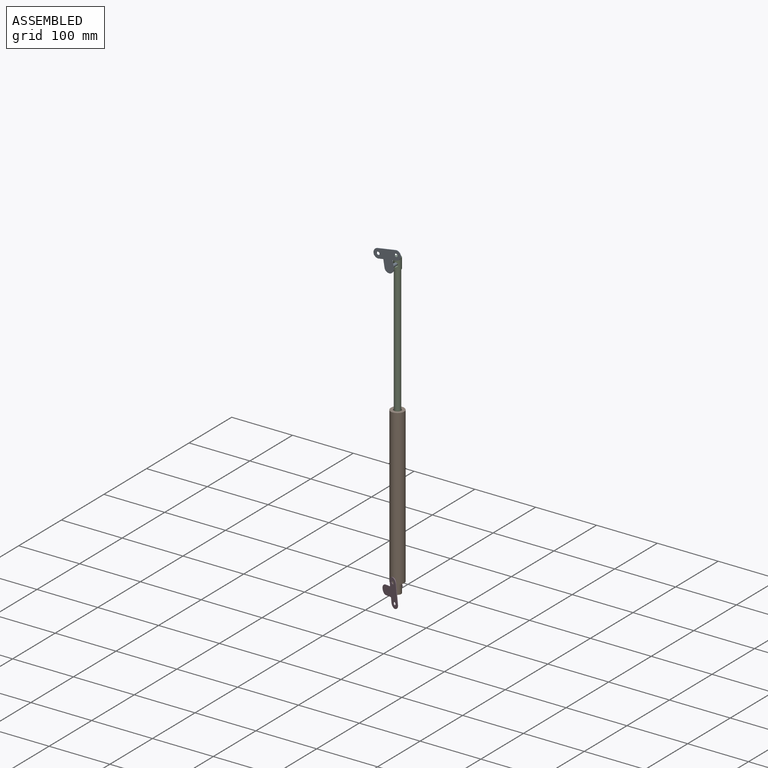
[diagram: assembled view]
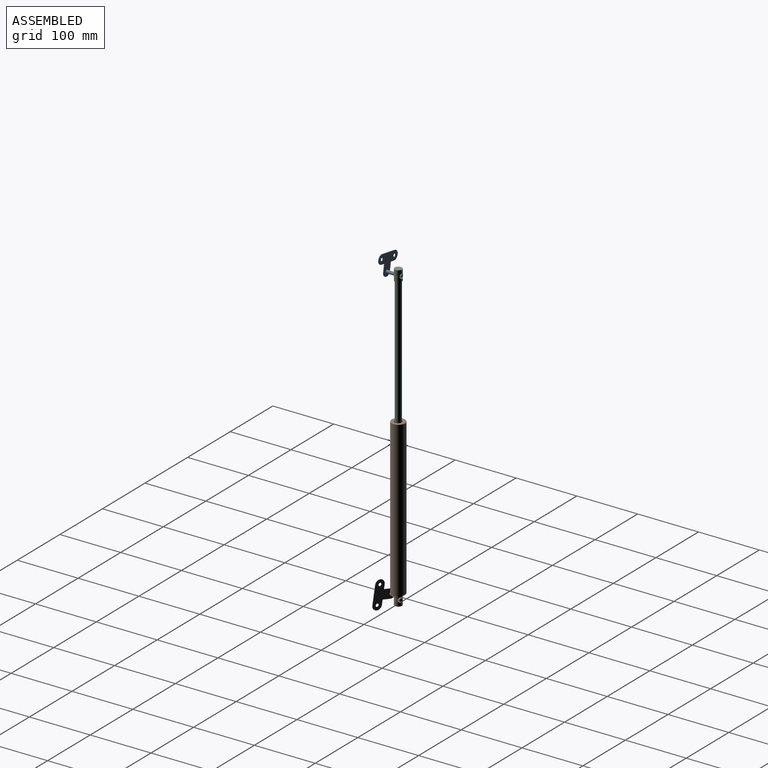
[diagram: assembled view, second angle]
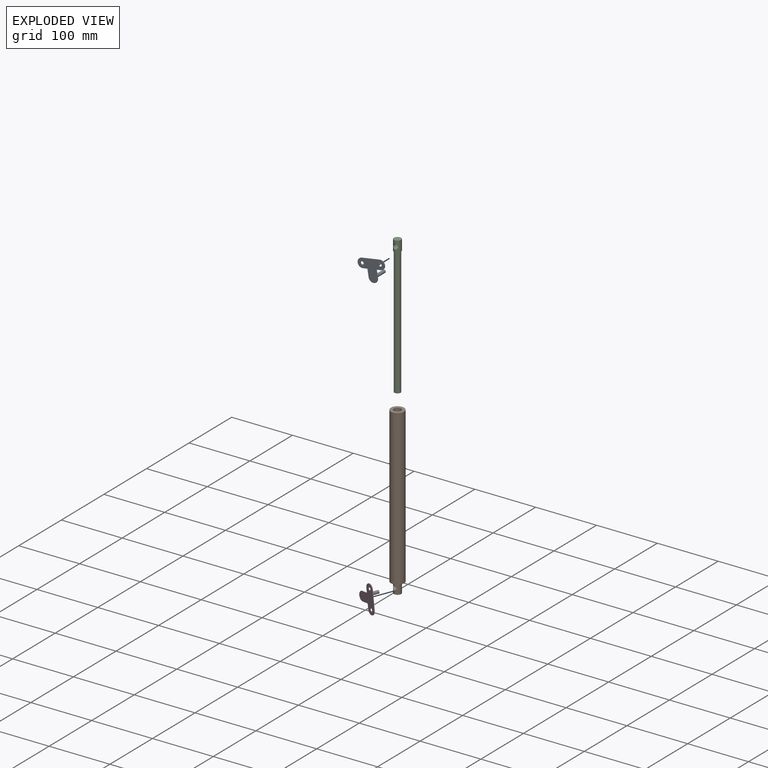
[diagram: exploded view]
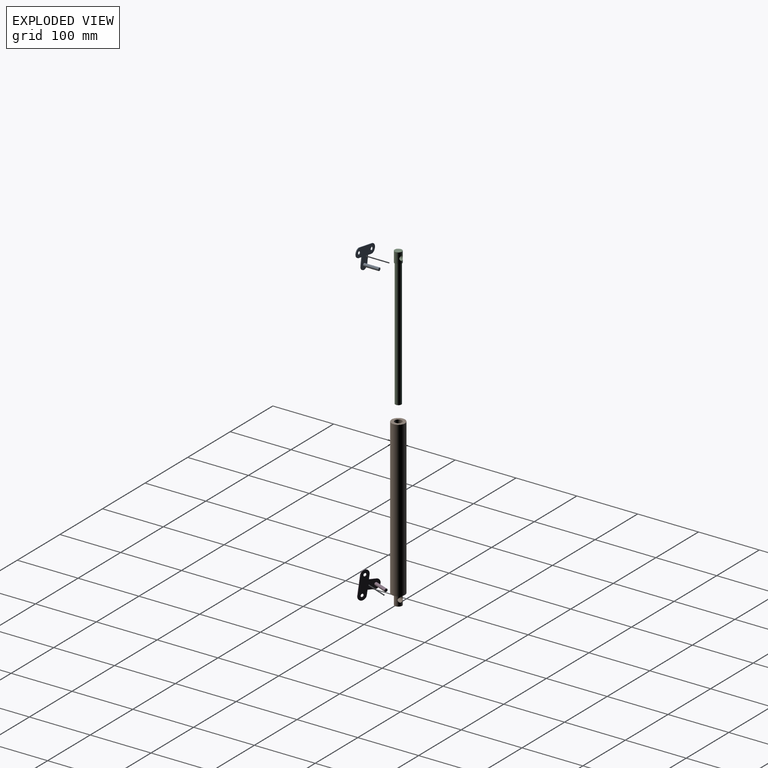
[diagram: exploded view, second angle]
ASSEMBLY  parts=4 mates=3
PART A: 14 faces, bbox 45x35x26 mm
  f0: plane 30x1mm, normal (0,-1,0), area 30mm2, adj f1,f7,f10,f11
  f1: cylinder r=7.5mm len=15mm, axis (0,0,1), area 23.6mm2, adj f0,f2,f10,f11
  f2: plane 7.5x1mm, normal (0,1,0), area 7.5mm2, adj f1,f3,f10,f11
  f3: plane 12.5x1mm, normal (1,0,0), area 12.5mm2, adj f2,f4,f10,f11
  f4: cylinder r=7.5mm len=15mm, axis (0,0,1), area 23.6mm2, adj f3,f5,f10,f11
  f5: plane 12.5x1mm, normal (-1,0,0), area 12.5mm2, adj f4,f6,f10,f11
  f6: plane 7.5x1mm, normal (0,1,0), area 7.5mm2, adj f5,f7,f10,f11
  f7: cylinder r=7.5mm len=15mm, axis (0,0,1), area 23.6mm2, adj f0,f6,f10,f11
  f8: cylinder r=2.5mm len=5mm, axis (0,0,1), area 15.7mm2, adj f10,f11
  f9: cylinder r=2.5mm len=5mm, axis (0,0,1), area 15.7mm2, adj f10,f11
  f10: plane 45x35mm, normal (0,0,1), area 843.7mm2, adj f0,f1,f2,f3,f4,f5,f6,f7
  f11: plane 45x35mm, normal (0,0,-1), area 863.3mm2, adj f0,f1,f2,f3,f4,f5,f6,f7
  f12: cylinder r=2.5mm len=25mm, axis (0,0,-1), area 392.7mm2, adj f10,f13
  f13: plane 5x5mm, normal (0,0,1), area 19.6mm2, adj f12
PART B: 8 faces, bbox 22x22x272.5 mm
  f0: cylinder r=11mm len=255mm, axis (0,0,-1), area 17624.3mm2, adj f1,f5
  f1: plane 22x22mm, normal (0,0,-1), area 267mm2, adj f0,f2
  f2: cylinder r=6mm len=17.5mm, axis (0,0,1), area 552.3mm2, adj f1,f3,f7
  f3: plane 12x12mm, normal (0,0,-1), area 113.1mm2, adj f2
  f4: cylinder r=6mm len=210mm, axis (0,0,-1), area 7916.8mm2, adj f5,f6
  f5: plane 22x22mm, normal (0,0,1), area 267mm2, adj f0,f4
  f6: plane 12x12mm, normal (0,0,1), area 113.1mm2, adj f4
  f7: cylinder r=4mm len=12mm, axis (0,-1,0), area 264.6mm2, adj f2
PART C: 6 faces, bbox 12x12x227.5 mm
  f0: cylinder r=5mm len=210mm, axis (0,0,-1), area 6597.3mm2, adj f1,f4
  f1: plane 10x10mm, normal (0,0,-1), area 78.5mm2, adj f0
  f2: cylinder r=6mm len=17.5mm, axis (0,0,-1), area 552.3mm2, adj f3,f4,f5
  f3: plane 12x12mm, normal (0,0,1), area 113.1mm2, adj f2
  f4: plane 12x12mm, normal (0,0,-1), area 34.6mm2, adj f0,f2
  f5: cylinder r=4mm len=12mm, axis (0,-1,0), area 264.6mm2, adj f2
PART D: same geometry as A
PLACE A rot(axis=(-0.99,-0.08,-0.08),90.4deg) t=(-106.47,-24.5,573.74)mm
PLACE B rot(axis=(0,0,-1),22.1deg) t=(-103.21,-5.58,81.29)mm
PLACE C t=(-103.21,-5.58,81.01)mm fixed
PLACE D rot(axis=(-0.55,0.7,0.44),104.2deg) t=(-91.71,-29.86,76.27)mm
MATE cylindrical A.f12 <-> C.f5  axis (0,1,0) through (-103.21,0.5,554.01)mm
MATE cylindrical C.f0 <-> B.f0  axis (0,0,-1) through (-103.21,-5.58,336.01)mm
MATE cylindrical D.f12 <-> B.f7  axis (0.38,0.93,0) through (-100.64,0.74,73.29)mm
